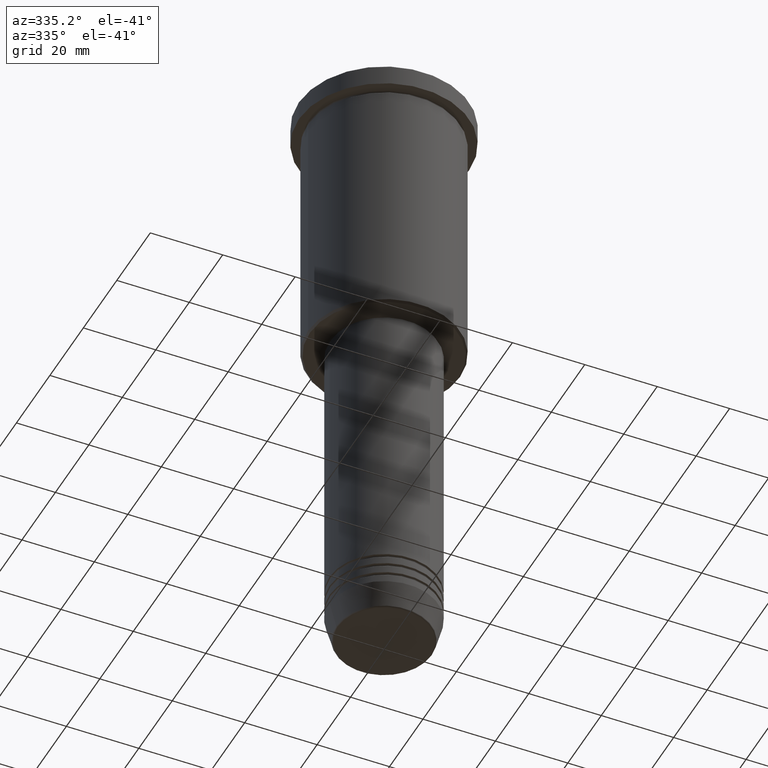
[diagram: clean part render]
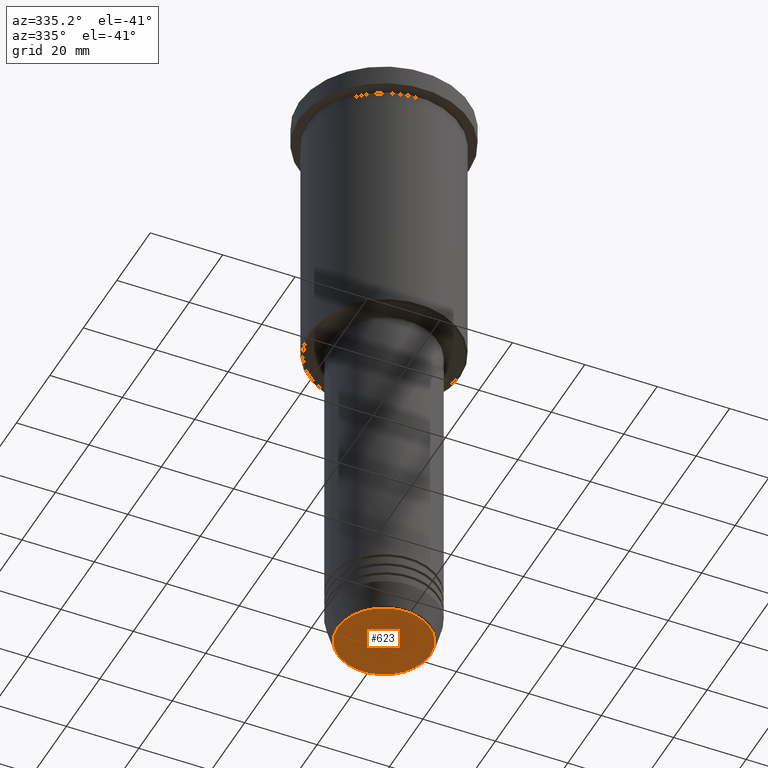
[diagram: same view with one face highlighted and labeled with its STEP entity id]
A machine part, auxiliary view. The second image highlights one B-rep face of the part: STEP entity #623.
In plain terms, the highlighted planar face has unit normal (0, -0, 1).
Its self-contained STEP definition (entity closure, byte-faithful):
#52 = EDGE_CURVE ( 'NONE', #475, #405, #234, .T. ) ;
#128 = CARTESIAN_POINT ( 'NONE',  ( 12.74069215899266538, 0.000000000000000000, -170.9999999999999716 ) ) ;
#234 = CIRCLE ( 'NONE', #612, 12.74069215899266538 ) ;
#267 = DIRECTION ( 'NONE',  ( 0.000000000000000000, 0.000000000000000000, -1.000000000000000000 ) ) ;
#288 = DIRECTION ( 'NONE',  ( 0.000000000000000000, -0.000000000000000000, 1.000000000000000000 ) ) ;
#300 = EDGE_LOOP ( 'NONE', ( #1076, #881 ) ) ;
#379 = AXIS2_PLACEMENT_3D ( 'NONE', #688, #288, #725 ) ;
#405 = VERTEX_POINT ( 'NONE', #766 ) ;
#459 = FACE_OUTER_BOUND ( 'NONE', #300, .T. ) ;
#475 = VERTEX_POINT ( 'NONE', #128 ) ;
#531 = CARTESIAN_POINT ( 'NONE',  ( 0.000000000000000000, 0.000000000000000000, -170.9999999999999716 ) ) ;
#580 = AXIS2_PLACEMENT_3D ( 'NONE', #1170, #267, #994 ) ;
#611 = PLANE ( 'NONE',  #379 ) ;
#612 = AXIS2_PLACEMENT_3D ( 'NONE', #531, #1176, #674 ) ;
#623 = ADVANCED_FACE ( 'NONE', ( #459 ), #611, .F. ) ;
#674 = DIRECTION ( 'NONE',  ( 1.000000000000000000, 0.000000000000000000, 0.000000000000000000 ) ) ;
#688 = CARTESIAN_POINT ( 'NONE',  ( 0.000000000000000000, 0.000000000000000000, -170.9999999999999716 ) ) ;
#725 = DIRECTION ( 'NONE',  ( 1.000000000000000000, 0.000000000000000000, 0.000000000000000000 ) ) ;
#759 = EDGE_CURVE ( 'NONE', #405, #475, #1007, .T. ) ;
#766 = CARTESIAN_POINT ( 'NONE',  ( -12.74069215899266538, 1.589857736427681824E-15, -170.9999999999999716 ) ) ;
#881 = ORIENTED_EDGE ( 'NONE', *, *, #759, .T. ) ;
#994 = DIRECTION ( 'NONE',  ( 1.000000000000000000, 0.000000000000000000, 0.000000000000000000 ) ) ;
#1007 = CIRCLE ( 'NONE', #580, 12.74069215899266538 ) ;
#1076 = ORIENTED_EDGE ( 'NONE', *, *, #52, .T. ) ;
#1170 = CARTESIAN_POINT ( 'NONE',  ( 0.000000000000000000, 0.000000000000000000, -170.9999999999999716 ) ) ;
#1176 = DIRECTION ( 'NONE',  ( 0.000000000000000000, 0.000000000000000000, -1.000000000000000000 ) ) ;